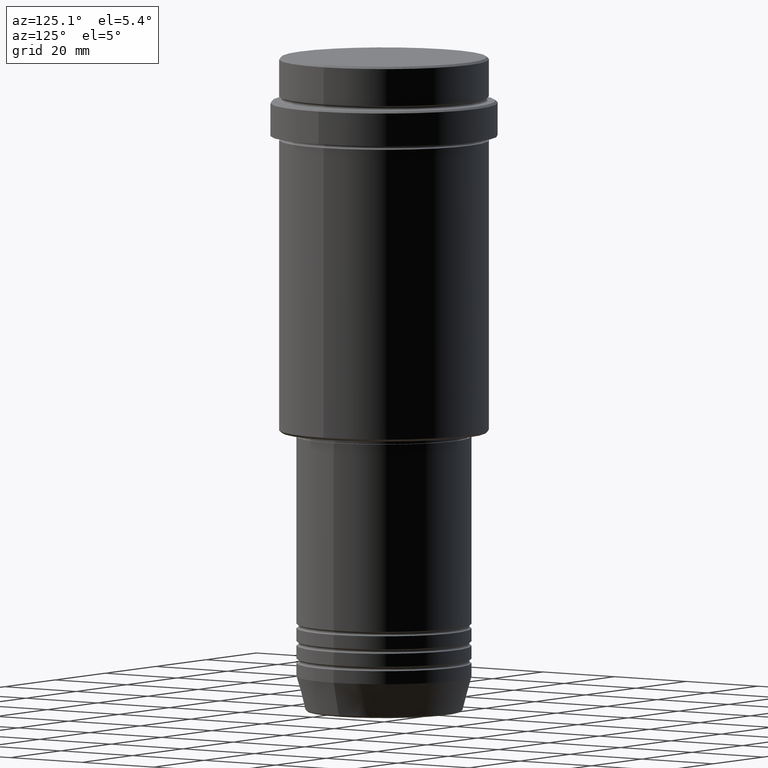
[diagram: clean part render]
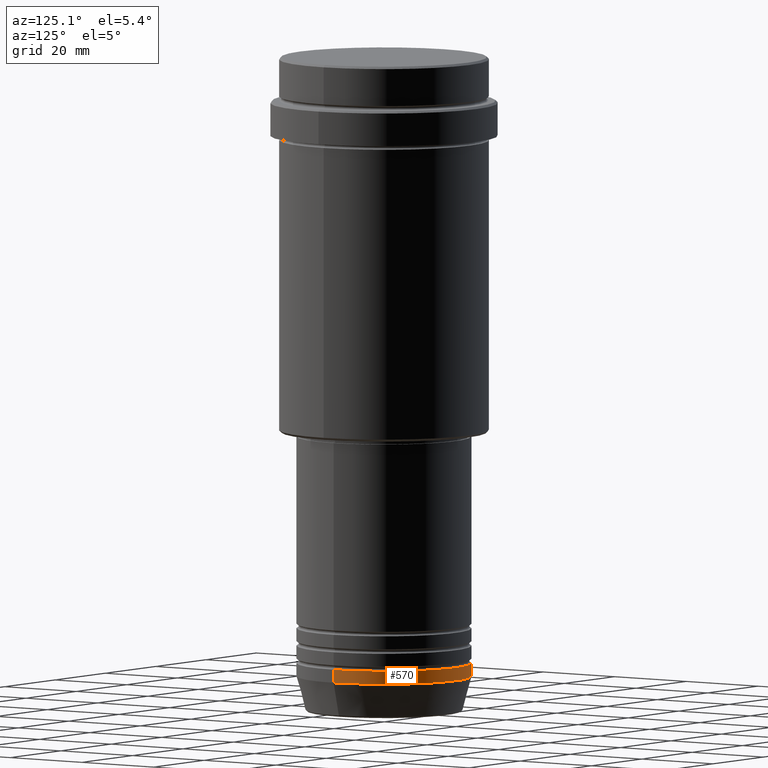
[diagram: same view with one face highlighted and labeled with its STEP entity id]
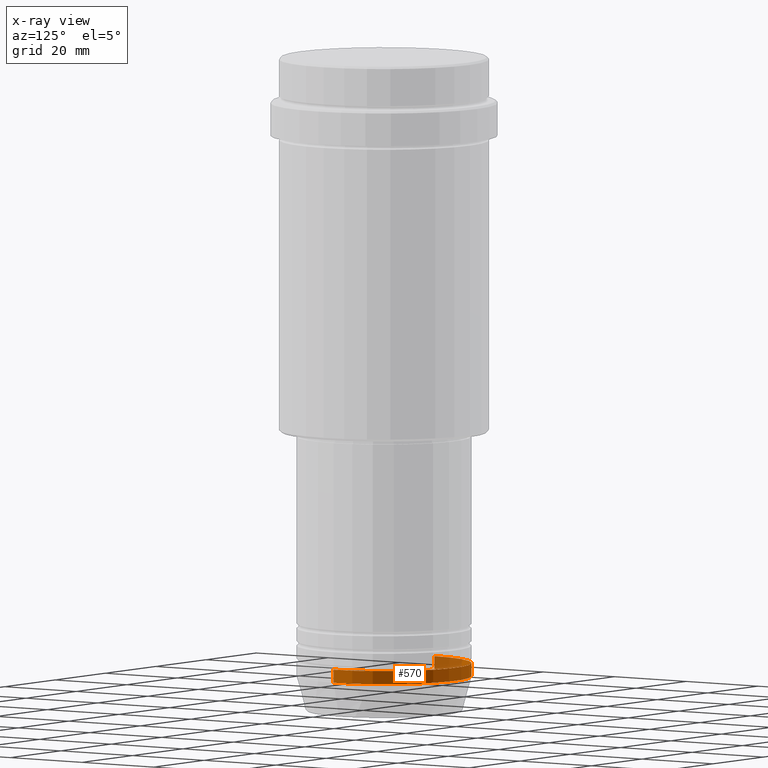
[diagram: x-ray of the same camera — body ghosted, the highlighted face saturated]
A machine part, auxiliary view. The second image highlights one B-rep face of the part: STEP entity #570.
The next image is the same camera in x-ray: the body ghosted, the highlighted face saturated — about 14% of this face is hidden behind the body in this view.
In plain terms, the highlighted cylindrical surface (partial cylindrical patch) has radius 20 mm, axis along (-0, -0, 1).
Its self-contained STEP definition (entity closure, byte-faithful):
#5 = LINE ( 'NONE', #849, #418 ) ;
#36 = EDGE_CURVE ( 'NONE', #756, #1176, #866, .T. ) ;
#107 = CARTESIAN_POINT ( 'NONE',  ( 20.00000000000000000, 0.000000000000000000, -142.0000000000000284 ) ) ;
#118 = AXIS2_PLACEMENT_3D ( 'NONE', #1147, #722, #626 ) ;
#120 = DIRECTION ( 'NONE',  ( 1.000000000000000000, 0.000000000000000000, 0.000000000000000000 ) ) ;
#126 = DIRECTION ( 'NONE',  ( -0.000000000000000000, -0.000000000000000000, 1.000000000000000000 ) ) ;
#134 = CARTESIAN_POINT ( 'NONE',  ( -20.00000000000000000, 2.449293598294706513E-15, -139.0000000000000000 ) ) ;
#183 = AXIS2_PLACEMENT_3D ( 'NONE', #1417, #126, #120 ) ;
#185 = EDGE_LOOP ( 'NONE', ( #1258, #1264, #884, #948 ) ) ;
#256 = AXIS2_PLACEMENT_3D ( 'NONE', #705, #599, #397 ) ;
#273 = EDGE_CURVE ( 'NONE', #1353, #756, #483, .T. ) ;
#312 = DIRECTION ( 'NONE',  ( -0.000000000000000000, -0.000000000000000000, 1.000000000000000000 ) ) ;
#378 = DIRECTION ( 'NONE',  ( -0.000000000000000000, -0.000000000000000000, 1.000000000000000000 ) ) ;
#397 = DIRECTION ( 'NONE',  ( 1.000000000000000000, 0.000000000000000000, 0.000000000000000000 ) ) ;
#418 = VECTOR ( 'NONE', #312, 1000.000000000000000 ) ;
#483 = LINE ( 'NONE', #920, #1054 ) ;
#490 = FACE_OUTER_BOUND ( 'NONE', #185, .T. ) ;
#513 = CARTESIAN_POINT ( 'NONE',  ( -20.00000000000000000, 2.449293598294706513E-15, -142.0000000000000284 ) ) ;
#570 = ADVANCED_FACE ( 'NONE', ( #490 ), #706, .T. ) ;
#599 = DIRECTION ( 'NONE',  ( -0.000000000000000000, -0.000000000000000000, 1.000000000000000000 ) ) ;
#626 = DIRECTION ( 'NONE',  ( 1.000000000000000000, 0.000000000000000000, 0.000000000000000000 ) ) ;
#701 = CARTESIAN_POINT ( 'NONE',  ( 20.00000000000000000, 0.000000000000000000, -139.0000000000000000 ) ) ;
#705 = CARTESIAN_POINT ( 'NONE',  ( 0.000000000000000000, 0.000000000000000000, -139.0000000000000000 ) ) ;
#706 = CYLINDRICAL_SURFACE ( 'NONE', #118, 20.00000000000000000 ) ;
#722 = DIRECTION ( 'NONE',  ( -0.000000000000000000, -0.000000000000000000, 1.000000000000000000 ) ) ;
#723 = VERTEX_POINT ( 'NONE', #513 ) ;
#756 = VERTEX_POINT ( 'NONE', #701 ) ;
#849 = CARTESIAN_POINT ( 'NONE',  ( -20.00000000000000000, 2.449293598294706513E-15, 0.000000000000000000 ) ) ;
#866 = CIRCLE ( 'NONE', #256, 20.00000000000000000 ) ;
#884 = ORIENTED_EDGE ( 'NONE', *, *, #36, .F. ) ;
#920 = CARTESIAN_POINT ( 'NONE',  ( 20.00000000000000000, 0.000000000000000000, 0.000000000000000000 ) ) ;
#948 = ORIENTED_EDGE ( 'NONE', *, *, #273, .F. ) ;
#959 = EDGE_CURVE ( 'NONE', #723, #1176, #5, .T. ) ;
#1054 = VECTOR ( 'NONE', #378, 1000.000000000000000 ) ;
#1147 = CARTESIAN_POINT ( 'NONE',  ( 0.000000000000000000, 0.000000000000000000, 0.000000000000000000 ) ) ;
#1176 = VERTEX_POINT ( 'NONE', #134 ) ;
#1258 = ORIENTED_EDGE ( 'NONE', *, *, #1339, .T. ) ;
#1264 = ORIENTED_EDGE ( 'NONE', *, *, #959, .T. ) ;
#1298 = CIRCLE ( 'NONE', #183, 20.00000000000000000 ) ;
#1339 = EDGE_CURVE ( 'NONE', #1353, #723, #1298, .T. ) ;
#1353 = VERTEX_POINT ( 'NONE', #107 ) ;
#1417 = CARTESIAN_POINT ( 'NONE',  ( 0.000000000000000000, 0.000000000000000000, -142.0000000000000284 ) ) ;